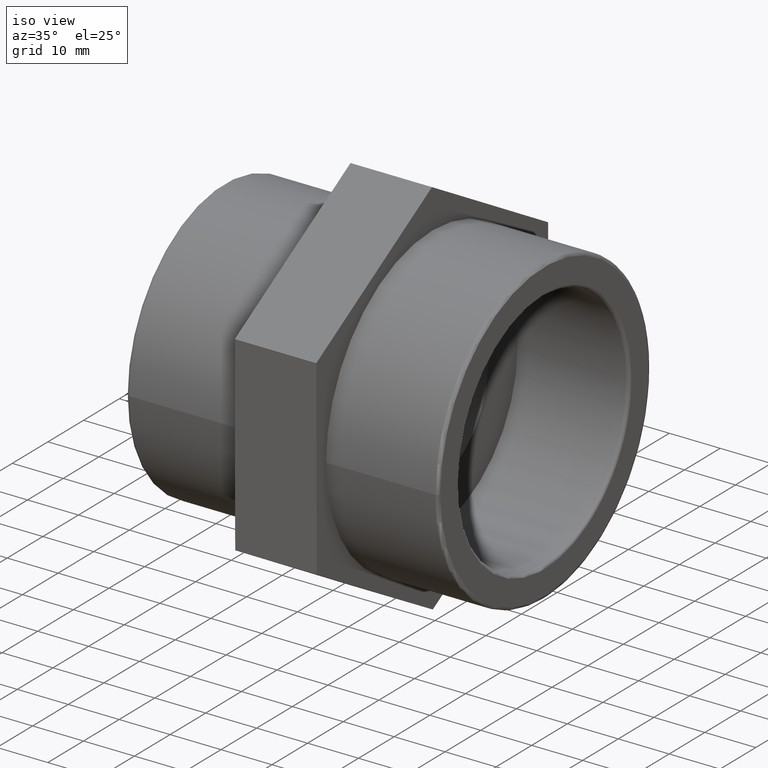
[diagram: clean part render]
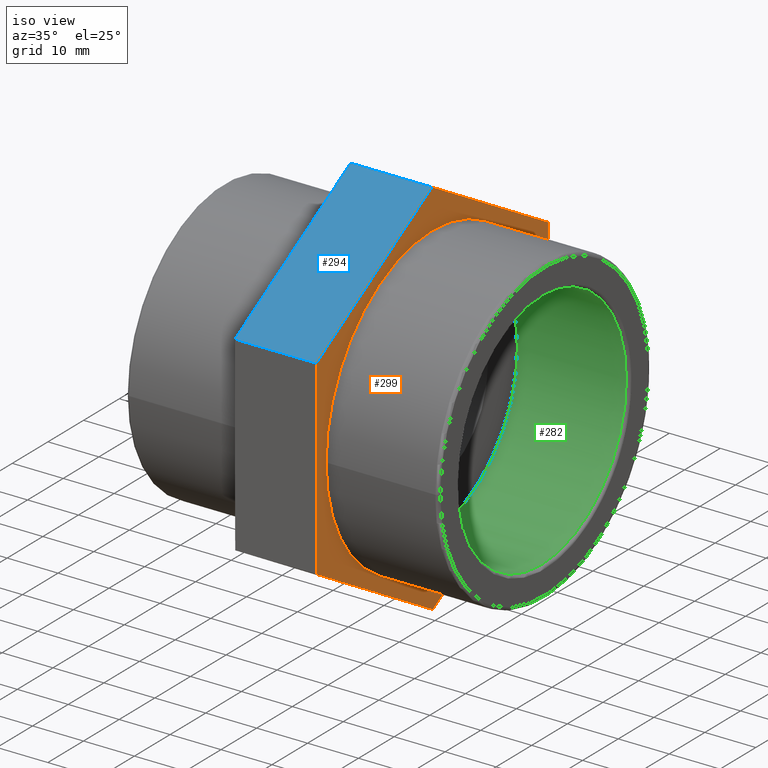
[diagram: same view with three faces highlighted in distinct colors, each labeled with its STEP entity id]
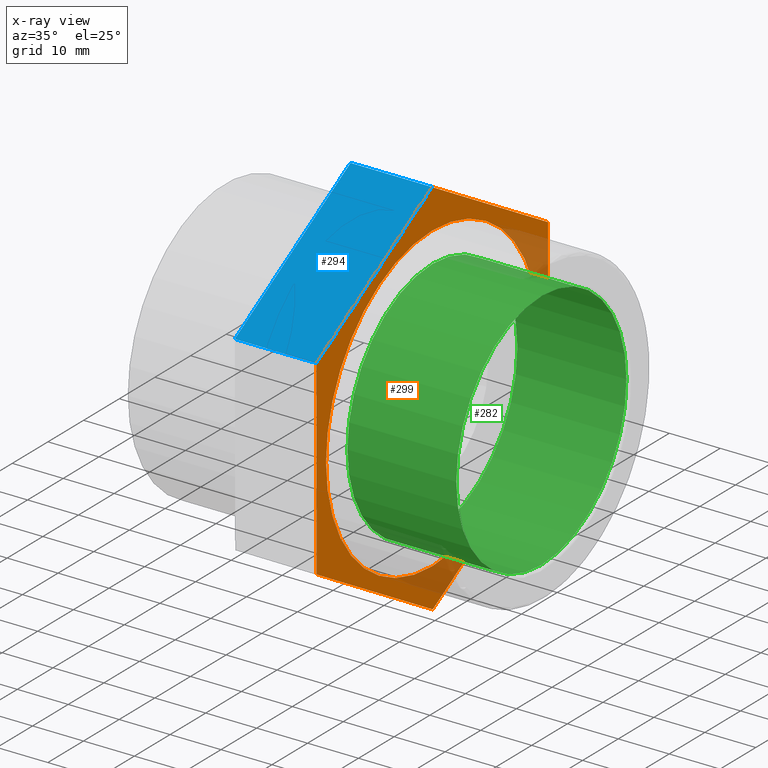
[diagram: x-ray of the same camera — body ghosted, the three highlighted faces saturated]
A machine part, iso view with three faces highlighted in distinct colors.
The next image is the same camera in x-ray (body ghosted, the three faces saturated) — at least one of them is partly hidden behind the body in this view.
Their STEP definitions:

[orange] entity #299 — the highlighted planar face has unit normal (1, 0, 0).
#17=LINE('',#470,#35);
#21=LINE('',#477,#39);
#24=LINE('',#483,#42);
#27=LINE('',#491,#45);
#30=LINE('',#495,#48);
#32=LINE('',#498,#50);
#35=VECTOR('',#388,37.5277674973257);
#39=VECTOR('',#394,37.5277674973257);
#42=VECTOR('',#399,37.5277674973257);
#45=VECTOR('',#404,37.5277674973257);
#48=VECTOR('',#409,37.5277674973257);
#50=VECTOR('',#413,37.5277674973257);
#66=PLANE('',#336);
#81=FACE_BOUND('',#137,.T.);
#102=FACE_OUTER_BOUND('',#136,.T.);
#136=EDGE_LOOP('',(#262,#263,#264,#265,#266,#267));
#137=EDGE_LOOP('',(#268));
#145=CIRCLE('',#313,29.807);
#159=VERTEX_POINT('',#444);
#168=VERTEX_POINT('',#467);
#169=VERTEX_POINT('',#469);
#171=VERTEX_POINT('',#475);
#173=VERTEX_POINT('',#481);
#176=VERTEX_POINT('',#488);
#177=VERTEX_POINT('',#490);
#185=EDGE_CURVE('',#159,#159,#145,.T.);
#194=EDGE_CURVE('',#168,#169,#17,.T.);
#198=EDGE_CURVE('',#171,#168,#21,.T.);
#201=EDGE_CURVE('',#173,#171,#24,.T.);
#204=EDGE_CURVE('',#176,#177,#27,.T.);
#207=EDGE_CURVE('',#169,#176,#30,.T.);
#209=EDGE_CURVE('',#177,#173,#32,.T.);
#262=ORIENTED_EDGE('',*,*,#207,.F.);
#263=ORIENTED_EDGE('',*,*,#194,.F.);
#264=ORIENTED_EDGE('',*,*,#198,.F.);
#265=ORIENTED_EDGE('',*,*,#201,.F.);
#266=ORIENTED_EDGE('',*,*,#209,.F.);
#267=ORIENTED_EDGE('',*,*,#204,.F.);
#268=ORIENTED_EDGE('',*,*,#185,.T.);
#299=ADVANCED_FACE('',(#102,#81),#66,.T.);
#313=AXIS2_PLACEMENT_3D('',#445,#360,#361);
#336=AXIS2_PLACEMENT_3D('',#506,#424,#425);
#360=DIRECTION('center_axis',(-1.,-1.83697019872103E-16,0.));
#361=DIRECTION('ref_axis',(0.,0.,1.));
#388=DIRECTION('',(5.44336326564006E-19,-0.00296322894591864,0.999995609627469));
#394=DIRECTION('',(1.59357755523959E-16,-0.867503216083254,0.49743157326934));
#399=DIRECTION('',(1.58813419197395E-16,-0.864539987137336,-0.502564036358129));
#404=DIRECTION('',(-1.59357755523959E-16,0.867503216083254,-0.49743157326934));
#409=DIRECTION('',(-1.58813419197395E-16,0.864539987137336,0.50256403635813));
#413=DIRECTION('',(-5.44336326563962E-19,0.0029632289459184,-0.999995609627469));
#424=DIRECTION('center_axis',(1.,1.83697019872103E-16,0.));
#425=DIRECTION('ref_axis',(0.,0.,-1.));
#444=CARTESIAN_POINT('',(9.50000000000001,-29.807,0.));
#445=CARTESIAN_POINT('Origin',(9.50000000000001,7.53157781475622E-15,0.));
#467=CARTESIAN_POINT('',(9.50000000000001,-32.4442556294309,-18.8601063089654));
#469=CARTESIAN_POINT('',(9.50000000000001,-32.5554589963546,18.6674964274807));
#470=CARTESIAN_POINT('',(9.50000000000001,-32.4442556294309,-18.8601063089654));
#475=CARTESIAN_POINT('',(9.50000000000001,0.111203366923771,-37.5276027364461));
#477=CARTESIAN_POINT('',(9.50000000000001,0.111203366923771,-37.5276027364461));
#481=CARTESIAN_POINT('',(9.5,32.5554589963546,-18.6674964274807));
#483=CARTESIAN_POINT('',(9.5,32.5554589963546,-18.6674964274807));
#488=CARTESIAN_POINT('',(9.50000000000001,-0.111203366923778,37.5276027364461));
#490=CARTESIAN_POINT('',(9.5,32.4442556294309,18.8601063089654));
#491=CARTESIAN_POINT('',(9.50000000000001,-0.111203366923778,37.5276027364461));
#495=CARTESIAN_POINT('',(9.50000000000001,-32.5554589963546,18.6674964274807));
#498=CARTESIAN_POINT('',(9.5,32.4442556294309,18.8601063089654));
#506=CARTESIAN_POINT('Origin',(9.50000000000001,-32.5,0.));

[blue] entity #294 — the highlighted planar face has unit normal (0, -0.5026, 0.8645).
#18=LINE('',#471,#36);
#26=LINE('',#489,#44);
#29=LINE('',#494,#47);
#30=LINE('',#495,#48);
#36=VECTOR('',#389,16.);
#44=VECTOR('',#403,16.);
#47=VECTOR('',#408,37.5277674973257);
#48=VECTOR('',#409,37.5277674973257);
#62=PLANE('',#329);
#97=FACE_OUTER_BOUND('',#128,.T.);
#128=EDGE_LOOP('',(#248,#249,#250,#251));
#166=VERTEX_POINT('',#464);
#169=VERTEX_POINT('',#469);
#175=VERTEX_POINT('',#486);
#176=VERTEX_POINT('',#488);
#195=EDGE_CURVE('',#169,#166,#18,.T.);
#203=EDGE_CURVE('',#176,#175,#26,.T.);
#206=EDGE_CURVE('',#175,#166,#29,.T.);
#207=EDGE_CURVE('',#169,#176,#30,.T.);
#248=ORIENTED_EDGE('',*,*,#206,.T.);
#249=ORIENTED_EDGE('',*,*,#195,.F.);
#250=ORIENTED_EDGE('',*,*,#207,.T.);
#251=ORIENTED_EDGE('',*,*,#203,.T.);
#294=ADVANCED_FACE('',(#97),#62,.T.);
#329=AXIS2_PLACEMENT_3D('',#493,#406,#407);
#389=DIRECTION('',(-1.,-1.85037170770858E-16,0.));
#403=DIRECTION('',(-1.,-1.85037170770858E-16,0.));
#406=DIRECTION('center_axis',(9.29930274188911E-17,-0.50256403635813,0.864539987137336));
#407=DIRECTION('ref_axis',(-1.77635683940025E-16,0.864539987137336,0.50256403635813));
#408=DIRECTION('',(1.58813419197395E-16,-0.864539987137336,-0.50256403635813));
#409=DIRECTION('',(-1.58813419197395E-16,0.864539987137336,0.50256403635813));
#464=CARTESIAN_POINT('',(-6.49999999999999,-32.5554589963547,18.6674964274807));
#469=CARTESIAN_POINT('',(9.50000000000001,-32.5554589963546,18.6674964274807));
#471=CARTESIAN_POINT('',(9.50000000000001,-32.5554589963546,18.6674964274807));
#486=CARTESIAN_POINT('',(-6.49999999999999,-0.111203366923781,37.5276027364461));
#488=CARTESIAN_POINT('',(9.50000000000001,-0.111203366923778,37.5276027364461));
#489=CARTESIAN_POINT('',(9.50000000000001,-0.111203366923778,37.5276027364461));
#493=CARTESIAN_POINT('Origin',(9.50000000000001,-32.5554589963546,18.6674964274807));
#494=CARTESIAN_POINT('',(-6.49999999999999,-24.4443950889969,23.3825230047221));
#495=CARTESIAN_POINT('',(9.50000000000001,-32.5554589963546,18.6674964274807));

[green] entity #282 — the highlighted cylindrical surface (bore or boss wall) has radius 23.8456 mm, axis along (-1, -0, 0).
#51=CYLINDRICAL_SURFACE('',#308,23.8456);
#70=FACE_BOUND('',#109,.T.);
#85=FACE_OUTER_BOUND('',#108,.T.);
#108=EDGE_LOOP('',(#216));
#109=EDGE_LOOP('',(#217));
#140=CIRCLE('',#304,23.8456);
#143=CIRCLE('',#309,23.8456);
#154=VERTEX_POINT('',#430);
#157=VERTEX_POINT('',#438);
#180=EDGE_CURVE('',#154,#154,#140,.T.);
#183=EDGE_CURVE('',#157,#157,#143,.T.);
#216=ORIENTED_EDGE('',*,*,#183,.T.);
#217=ORIENTED_EDGE('',*,*,#180,.F.);
#282=ADVANCED_FACE('',(#85,#70),#51,.F.);
#304=AXIS2_PLACEMENT_3D('',#431,#342,#343);
#308=AXIS2_PLACEMENT_3D('',#437,#350,#351);
#309=AXIS2_PLACEMENT_3D('',#439,#352,#353);
#342=DIRECTION('center_axis',(-1.,-1.83697019872103E-16,0.));
#343=DIRECTION('ref_axis',(-1.8332535811477E-16,1.,6.12323399573677E-17));
#350=DIRECTION('center_axis',(-1.,-1.83697019872103E-16,0.));
#351=DIRECTION('ref_axis',(2.28018694726875E-16,-1.,0.));
#352=DIRECTION('center_axis',(-1.,-1.83697019872103E-16,0.));
#353=DIRECTION('ref_axis',(0.,0.,1.));
#430=CARTESIAN_POINT('',(30.90386,-23.8456,1.46012188568741E-15));
#431=CARTESIAN_POINT('Origin',(30.90386,1.14634031105159E-14,0.));
#437=CARTESIAN_POINT('Origin',(20.5,9.55224503334936E-15,0.));
#438=CARTESIAN_POINT('',(9.5,-23.8456,0.));
#439=CARTESIAN_POINT('Origin',(9.5,7.53157781475622E-15,0.));